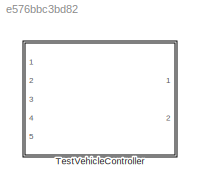
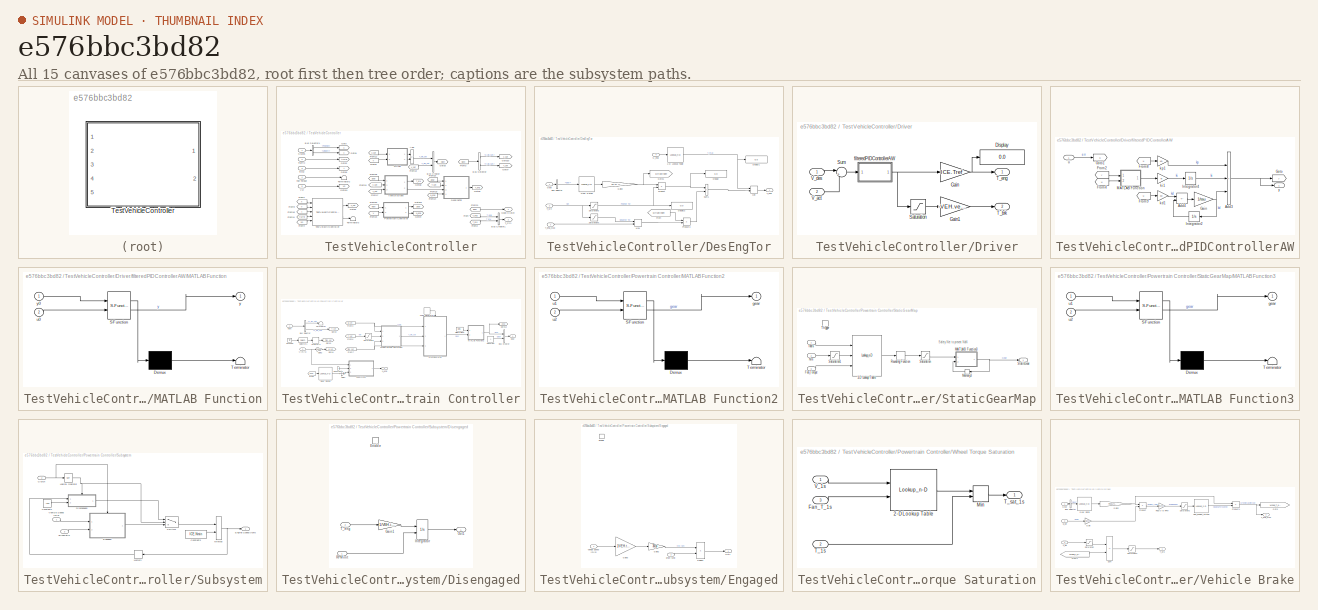
[diagram: thumbnail index - all 15 canvases of the model, root first then tree order]
MODEL slx_e576bbc3bd82
KIND library
CONFIG AbsTol = auto
CONFIG EnableMultiTasking = off
CONFIG FixedStep = auto
CONFIG MaxStep = auto
CONFIG MinStep = auto
CONFIG RelTol = 1e-3
CONFIG SampleTimeConstraint = Unconstrained
CONFIG Solver = VariableStepAuto
CONFIG SolverName = VariableStepAuto
CONFIG StartTime = 0.0
CONFIG StopTime = 10.0
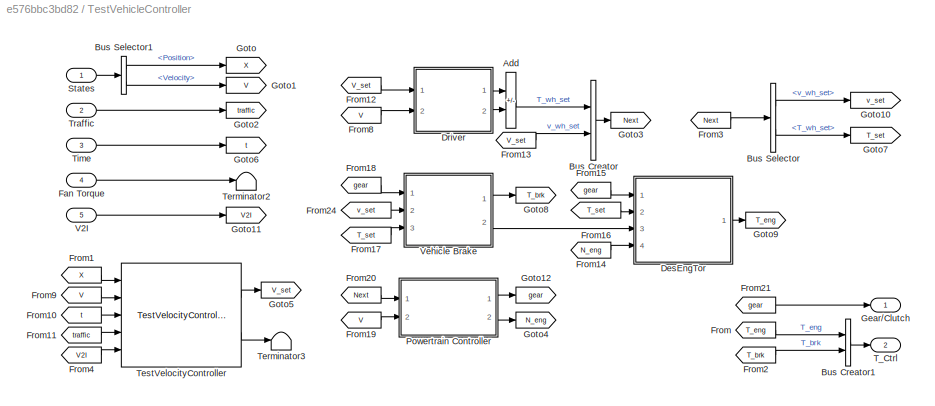
BLOCK [SubSystem] TestVehicleController
  Ports = [5, 2]
  RequestExecContextInheritance = off
  VariantControl = strcmpi(VEHICLECONTROLLER,'Test')
BLOCK [Sum] TestVehicleController/Add
  IconShape = rectangular
  Inputs = +-
  Ports = [2, 1]
BLOCK [BusCreator] TestVehicleController/Bus Creator
  DisplayOption = bar
  InheritFromInputs = on
  Inputs = 2
  Ports = [2, 1]
BLOCK [BusCreator] TestVehicleController/Bus Creator1
  DisplayOption = bar
  InheritFromInputs = on
  Inputs = 2
  Ports = [2, 1]
BLOCK [BusSelector] TestVehicleController/Bus Selector
  OutputSignals = v_wh_set,T_wh_set
  Ports = [1, 2]
BLOCK [BusSelector] TestVehicleController/Bus Selector1
  OutputSignals = Position,Velocity
  Ports = [1, 2]
BLOCK [SubSystem] TestVehicleController/DesEngTor
  Ports = [4, 1]
  RequestExecContextInheritance = off
BLOCK [Lookup_n-D] TestVehicleController/DesEngTor/1-D Lookup Table
  BreakpointsForDimension1 = MTC.espd
  InternalRulePriority = Speed
  NumberOfTableDimensions = 1
  Ports = [1, 1]
  RndMeth = Simplest
  Table = MTC.T_max
BLOCK [BusSelector] TestVehicleController/DesEngTor/Bus Selector
  OutputSignals = Gear
  Ports = [1, 1]
BLOCK [Display] TestVehicleController/DesEngTor/Display
  Decimation = 1
  Ports = [1]
BLOCK [Display] TestVehicleController/DesEngTor/Display1
  Decimation = 1
  Ports = [1]
BLOCK [Display] TestVehicleController/DesEngTor/Display2
  Decimation = 1
  Ports = [1]
BLOCK [From] TestVehicleController/DesEngTor/From
  GotoTag = DrivelineR
BLOCK [Gain] TestVehicleController/DesEngTor/Gain2
  Gain = TRAN.finalDrive
BLOCK [Inport] TestVehicleController/DesEngTor/Gear
BLOCK [Lookup_n-D] TestVehicleController/DesEngTor/Gear Ratios
  BreakpointsForDimension1 = [1:TRAN.numGears]
  ExtrapMethod = Clip
  InternalRulePriority = Speed
  NumberOfTableDimensions = 1
  Ports = [1, 1]
  RndMeth = Simplest
  Table = TRAN.gears
  UseLastTableValue = on
BLOCK [Goto] TestVehicleController/DesEngTor/Goto1
  GotoTag = DrivelineR
BLOCK [MinMax] TestVehicleController/DesEngTor/Max
  Function = max
  Inputs = 2
  Ports = [2, 1]
BLOCK [MinMax] TestVehicleController/DesEngTor/Min
  Inputs = 2
  Ports = [2, 1]
BLOCK [Inport] TestVehicleController/DesEngTor/N_eng
  Port = 4
BLOCK [Product] TestVehicleController/DesEngTor/Product
  Inputs = /*
  Ports = [2, 1]
BLOCK [Product] TestVehicleController/DesEngTor/Product3
  Inputs = /*
  Ports = [2, 1]
BLOCK [Saturate] TestVehicleController/DesEngTor/Saturation2
  LowerLimit = 0
  UpperLimit = inf
BLOCK [Saturate] TestVehicleController/DesEngTor/Saturation3
  LowerLimit = -inf
  UpperLimit = 0
BLOCK [Sum] TestVehicleController/DesEngTor/Sum1
  IconShape = rectangular
  Ports = [2, 1]
BLOCK [Outport] TestVehicleController/DesEngTor/T_eng
  VectorParamsAs1DForOutWhenUnconnected = off
BLOCK [Inport] TestVehicleController/DesEngTor/T_eng_Max
  Port = 3
BLOCK [Inport] TestVehicleController/DesEngTor/T_wh
  Port = 2
BLOCK [SubSystem] TestVehicleController/Driver
  Ports = [2, 2]
  RequestExecContextInheritance = off
BLOCK [Display] TestVehicleController/Driver/Display
  Decimation = 1
  Ports = [1]
BLOCK [Gain] TestVehicleController/Driver/Gain
  Gain = ICE.Tref
BLOCK [Gain] TestVehicleController/Driver/Gain1
  Gain = -VEH.vehicleMass*9.8*VEH.mu*VEH.tireRad
BLOCK [Saturate] TestVehicleController/Driver/Saturation
  LowerLimit = -1
  UpperLimit = 0
BLOCK [Sum] TestVehicleController/Driver/Sum
  Inputs = |+-
  Ports = [2, 1]
BLOCK [Outport] TestVehicleController/Driver/T_brk
  Port = 2
  VectorParamsAs1DForOutWhenUnconnected = off
BLOCK [Outport] TestVehicleController/Driver/T_eng
  VectorParamsAs1DForOutWhenUnconnected = off
BLOCK [Inport] TestVehicleController/Driver/V_act
  Port = 2
BLOCK [Inport] TestVehicleController/Driver/V_des
BLOCK [SubSystem] TestVehicleController/Driver/filteredPIDControllerAW
  Ports = [1, 1]
  RequestExecContextInheritance = off
BLOCK [Sum] TestVehicleController/Driver/filteredPIDControllerAW/Add3
  IconShape = rectangular
  Inputs = +++
  Ports = [3, 1]
BLOCK [Sum] TestVehicleController/Driver/filteredPIDControllerAW/Add4
  IconShape = rectangular
  Inputs = +-
  Ports = [2, 1]
BLOCK [From] TestVehicleController/Driver/filteredPIDControllerAW/From2
  GotoTag = y
BLOCK [From] TestVehicleController/Driver/filteredPIDControllerAW/From4
  GotoTag = u
BLOCK [From] TestVehicleController/Driver/filteredPIDControllerAW/From8
  GotoTag = u
BLOCK [From] TestVehicleController/Driver/filteredPIDControllerAW/From9
  GotoTag = u
BLOCK [Gain] TestVehicleController/Driver/filteredPIDControllerAW/Gain
  Gain = 1/tau
BLOCK [Goto] TestVehicleController/Driver/filteredPIDControllerAW/Goto
  GotoTag = y
BLOCK [Goto] TestVehicleController/Driver/filteredPIDControllerAW/Goto1
  GotoTag = u
BLOCK [Integrator] TestVehicleController/Driver/filteredPIDControllerAW/Integrator2
  Ports = [1, 1]
BLOCK [Integrator] TestVehicleController/Driver/filteredPIDControllerAW/Integrator4
  Ports = [1, 1]
BLOCK [SubSystem] TestVehicleController/Driver/filteredPIDControllerAW/MATLAB Function
  ErrorFcn = Stateflow.Translate.translate
  PermitHierarchicalResolution = ExplicitOnly
  Ports = [2, 1]
  RequestExecContextInheritance = off
  SFBlockType = MATLAB Function
  TreatAsAtomicUnit = on
BLOCK [Demux] TestVehicleController/Driver/filteredPIDControllerAW/MATLAB Function/ Demux 
  Outputs = 1
  Ports = [1, 1]
BLOCK [S-Function] TestVehicleController/Driver/filteredPIDControllerAW/MATLAB Function/ SFunction 
  EnableBusSupport = off
  FunctionName = sf_sfun
  Parameters = cMax,cMin
  PortCounts = [2 2]
  Ports = [2, 2]
  SFcnIsStateOwnerBlock = off
  SFunctionDeploymentMode = off
  Tag = Stateflow S-Function 1
BLOCK [Terminator] TestVehicleController/Driver/filteredPIDControllerAW/MATLAB Function/ Terminator 
BLOCK [Inport] TestVehicleController/Driver/filteredPIDControllerAW/MATLAB Function/u0
  Port = 2
BLOCK [Outport] TestVehicleController/Driver/filteredPIDControllerAW/MATLAB Function/y
BLOCK [Inport] TestVehicleController/Driver/filteredPIDControllerAW/MATLAB Function/y0
BLOCK [Gain] TestVehicleController/Driver/filteredPIDControllerAW/kd1
  Gain = kd
BLOCK [Gain] TestVehicleController/Driver/filteredPIDControllerAW/ki1
  Gain = ki
BLOCK [Gain] TestVehicleController/Driver/filteredPIDControllerAW/kp1
  Gain = kp
BLOCK [Inport] TestVehicleController/Driver/filteredPIDControllerAW/u
  PortDimensions = 1
BLOCK [Outport] TestVehicleController/Driver/filteredPIDControllerAW/y
  PortDimensions = 1
  VectorParamsAs1DForOutWhenUnconnected = off
BLOCK [Inport] TestVehicleController/Fan Torque
  Port = 4
BLOCK [From] TestVehicleController/From
  GotoTag = T_eng
BLOCK [From] TestVehicleController/From1
  GotoTag = X
BLOCK [From] TestVehicleController/From10
  GotoTag = t
BLOCK [From] TestVehicleController/From11
  GotoTag = traffic
BLOCK [From] TestVehicleController/From12
  GotoTag = V_set
BLOCK [From] TestVehicleController/From13
  GotoTag = V_set
BLOCK [From] TestVehicleController/From14
  GotoTag = N_eng
BLOCK [From] TestVehicleController/From15
  GotoTag = gear
BLOCK [From] TestVehicleController/From16
  GotoTag = T_set
BLOCK [From] TestVehicleController/From17
  GotoTag = T_set
BLOCK [From] TestVehicleController/From18
  GotoTag = gear
BLOCK [From] TestVehicleController/From19
  GotoTag = V
BLOCK [From] TestVehicleController/From2
  GotoTag = T_brk
BLOCK [From] TestVehicleController/From20
  GotoTag = Next
BLOCK [From] TestVehicleController/From21
  GotoTag = gear
BLOCK [From] TestVehicleController/From24
  GotoTag = v_set
BLOCK [From] TestVehicleController/From3
  GotoTag = Next
BLOCK [From] TestVehicleController/From4
  GotoTag = V2I
BLOCK [From] TestVehicleController/From8
  GotoTag = V
BLOCK [From] TestVehicleController/From9
  GotoTag = V
BLOCK [Outport] TestVehicleController/Gear//Clutch
  VectorParamsAs1DForOutWhenUnconnected = off
BLOCK [Goto] TestVehicleController/Goto
  GotoTag = X
BLOCK [Goto] TestVehicleController/Goto1
  GotoTag = V
BLOCK [Goto] TestVehicleController/Goto10
  GotoTag = v_set
BLOCK [Goto] TestVehicleController/Goto11
  GotoTag = V2I
BLOCK [Goto] TestVehicleController/Goto12
  GotoTag = gear
BLOCK [Goto] TestVehicleController/Goto2
  GotoTag = traffic
BLOCK [Goto] TestVehicleController/Goto3
  GotoTag = Next
BLOCK [Goto] TestVehicleController/Goto4
  GotoTag = N_eng
BLOCK [Goto] TestVehicleController/Goto5
  GotoTag = V_set
BLOCK [Goto] TestVehicleController/Goto6
  GotoTag = t
BLOCK [Goto] TestVehicleController/Goto7
  GotoTag = T_set
BLOCK [Goto] TestVehicleController/Goto8
  GotoTag = T_brk
BLOCK [Goto] TestVehicleController/Goto9
  GotoTag = T_eng
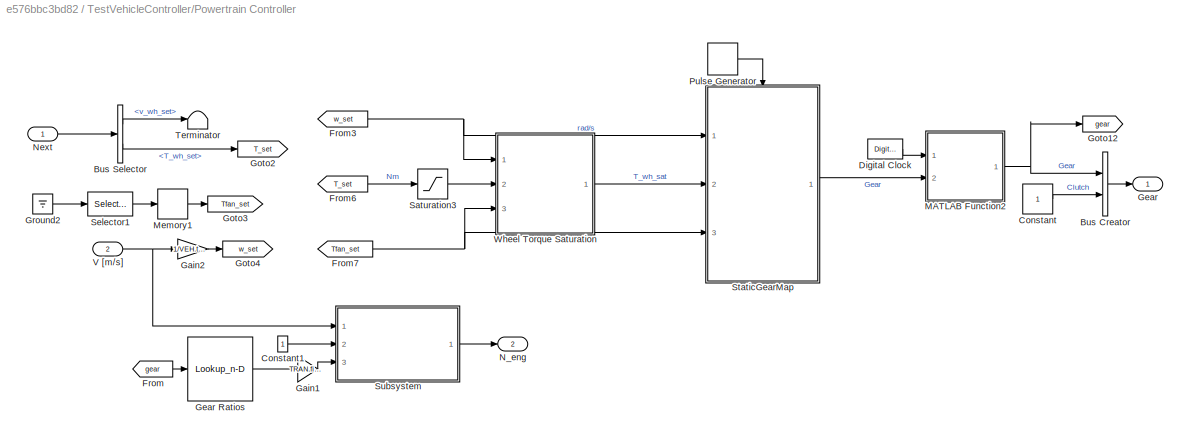
BLOCK [SubSystem] TestVehicleController/Powertrain Controller
  Ports = [2, 2]
  RequestExecContextInheritance = off
BLOCK [BusCreator] TestVehicleController/Powertrain Controller/Bus Creator
  DisplayOption = bar
  InheritFromInputs = on
  Inputs = Gear,Clutch
  Ports = [2, 1]
BLOCK [BusSelector] TestVehicleController/Powertrain Controller/Bus Selector
  OutputSignals = v_wh_set,T_wh_set
  Ports = [1, 2]
BLOCK [Constant] TestVehicleController/Powertrain Controller/Constant
BLOCK [Constant] TestVehicleController/Powertrain Controller/Constant1
BLOCK [DigitalClock] TestVehicleController/Powertrain Controller/Digital Clock
BLOCK [From] TestVehicleController/Powertrain Controller/From
  GotoTag = gear
BLOCK [From] TestVehicleController/Powertrain Controller/From3
  GotoTag = w_set
BLOCK [From] TestVehicleController/Powertrain Controller/From6
  GotoTag = T_set
BLOCK [From] TestVehicleController/Powertrain Controller/From7
  GotoTag = Tfan_set
BLOCK [Gain] TestVehicleController/Powertrain Controller/Gain1
  Gain = TRAN.finalDrive
BLOCK [Gain] TestVehicleController/Powertrain Controller/Gain2
  Gain = 1/VEH.tireRad
BLOCK [Outport] TestVehicleController/Powertrain Controller/Gear
  VectorParamsAs1DForOutWhenUnconnected = off
BLOCK [Lookup_n-D] TestVehicleController/Powertrain Controller/Gear Ratios
  BreakpointsForDimension1 = [1:TRAN.numGears]
  ExtrapMethod = Clip
  InternalRulePriority = Speed
  NumberOfTableDimensions = 1
  Ports = [1, 1]
  RndMeth = Simplest
  Table = TRAN.gears
  UseLastTableValue = on
BLOCK [Goto] TestVehicleController/Powertrain Controller/Goto12
  GotoTag = gear
BLOCK [Goto] TestVehicleController/Powertrain Controller/Goto2
  GotoTag = T_set
BLOCK [Goto] TestVehicleController/Powertrain Controller/Goto3
  GotoTag = Tfan_set
BLOCK [Goto] TestVehicleController/Powertrain Controller/Goto4
  GotoTag = w_set
BLOCK [Ground] TestVehicleController/Powertrain Controller/Ground2
BLOCK [SubSystem] TestVehicleController/Powertrain Controller/MATLAB Function2
  ErrorFcn = Stateflow.Translate.translate
  PermitHierarchicalResolution = ExplicitOnly
  Ports = [2, 1]
  RequestExecContextInheritance = off
  SFBlockType = MATLAB Function
  TreatAsAtomicUnit = on
BLOCK [Demux] TestVehicleController/Powertrain Controller/MATLAB Function2/ Demux 
  Outputs = 1
  Ports = [1, 1]
BLOCK [S-Function] TestVehicleController/Powertrain Controller/MATLAB Function2/ SFunction 
  EnableBusSupport = off
  FunctionName = sf_sfun
  PortCounts = [2 2]
  Ports = [2, 2]
  SFcnIsStateOwnerBlock = off
  SFunctionDeploymentMode = off
  Tag = Stateflow S-Function 2
BLOCK [Terminator] TestVehicleController/Powertrain Controller/MATLAB Function2/ Terminator 
BLOCK [Outport] TestVehicleController/Powertrain Controller/MATLAB Function2/gear
  VectorParamsAs1DForOutWhenUnconnected = off
BLOCK [Inport] TestVehicleController/Powertrain Controller/MATLAB Function2/u1
BLOCK [Inport] TestVehicleController/Powertrain Controller/MATLAB Function2/u2
  Port = 2
BLOCK [Memory] TestVehicleController/Powertrain Controller/Memory1
  InheritSampleTime = on
BLOCK [Outport] TestVehicleController/Powertrain Controller/N_eng
  Port = 2
  VectorParamsAs1DForOutWhenUnconnected = off
BLOCK [Inport] TestVehicleController/Powertrain Controller/Next
BLOCK [DiscretePulseGenerator] TestVehicleController/Powertrain Controller/Pulse Generator
  Period = 7
  Ports = [0, 1]
  PulseType = Time based
BLOCK [Saturate] TestVehicleController/Powertrain Controller/Saturation3
  LowerLimit = 0
  UpperLimit = inf
BLOCK [Selector] TestVehicleController/Powertrain Controller/Selector1
  IndexOptions = Index vector (dialog)
  Indices = [1]
  InputPortWidth = 1
  OutputSizes = 1
  Ports = [1, 1]
BLOCK [SubSystem] TestVehicleController/Powertrain Controller/StaticGearMap
  Ports = [3, 1, 0, 1]
  RequestExecContextInheritance = off
BLOCK [Lookup_n-D] TestVehicleController/Powertrain Controller/StaticGearMap/3-D Lookup Table
  BreakpointsForDimension1 = dem_wheel_speed
  BreakpointsForDimension2 = dem_wheel_torque
  BreakpointsForDimension3 = t_acc
  InternalRulePriority = Speed
  NumberOfTableDimensions = 3
  Ports = [3, 1]
  RndMeth = Simplest
  Table = best_gear
BLOCK [Inport] TestVehicleController/Powertrain Controller/StaticGearMap/Fan_Torque
  Port = 3
BLOCK [SubSystem] TestVehicleController/Powertrain Controller/StaticGearMap/MATLAB Function3
  ErrorFcn = Stateflow.Translate.translate
  PermitHierarchicalResolution = ExplicitOnly
  Ports = [2, 1]
  RequestExecContextInheritance = off
  SFBlockType = MATLAB Function
  TreatAsAtomicUnit = on
BLOCK [Demux] TestVehicleController/Powertrain Controller/StaticGearMap/MATLAB Function3/ Demux 
  Outputs = 1
  Ports = [1, 1]
BLOCK [S-Function] TestVehicleController/Powertrain Controller/StaticGearMap/MATLAB Function3/ SFunction 
  EnableBusSupport = off
  FunctionName = sf_sfun
  PortCounts = [2 2]
  Ports = [2, 2]
  SFcnIsStateOwnerBlock = off
  SFunctionDeploymentMode = off
  Tag = Stateflow S-Function 8
BLOCK [Terminator] TestVehicleController/Powertrain Controller/StaticGearMap/MATLAB Function3/ Terminator 
BLOCK [Outport] TestVehicleController/Powertrain Controller/StaticGearMap/MATLAB Function3/gear
  VectorParamsAs1DForOutWhenUnconnected = off
BLOCK [Inport] TestVehicleController/Powertrain Controller/StaticGearMap/MATLAB Function3/u1
BLOCK [Inport] TestVehicleController/Powertrain Controller/StaticGearMap/MATLAB Function3/u2
  Port = 2
BLOCK [Memory] TestVehicleController/Powertrain Controller/StaticGearMap/Memory3
  InheritSampleTime = on
  InitialCondition = 11
BLOCK [Inport] TestVehicleController/Powertrain Controller/StaticGearMap/Nm
  Port = 2
BLOCK [Rounding] TestVehicleController/Powertrain Controller/StaticGearMap/Rounding Function
  Operator = round
BLOCK [Saturate] TestVehicleController/Powertrain Controller/StaticGearMap/Saturation
  LowerLimit = 1
  UpperLimit = 12
BLOCK [Saturate] TestVehicleController/Powertrain Controller/StaticGearMap/Saturation1
  LowerLimit = 0
  UpperLimit = inf
BLOCK [Outport] TestVehicleController/Powertrain Controller/StaticGearMap/StaticGear
  VectorParamsAs1DForOutWhenUnconnected = off
BLOCK [TriggerPort] TestVehicleController/Powertrain Controller/StaticGearMap/Trigger
  PortDimensions = 1
  Ports = []
  StatesWhenEnabling = held
  VariantControl = Variant
BLOCK [Inport] TestVehicleController/Powertrain Controller/StaticGearMap/rad//s
BLOCK [SubSystem] TestVehicleController/Powertrain Controller/Subsystem
  Ports = [3, 1]
  RequestExecContextInheritance = off
BLOCK [Inport] TestVehicleController/Powertrain Controller/Subsystem/Clutch
  Port = 2
BLOCK [Constant] TestVehicleController/Powertrain Controller/Subsystem/Constant1
  Value = -300
BLOCK [Constant] TestVehicleController/Powertrain Controller/Subsystem/Constant3
  Value = ICE.Nmin
BLOCK [SubSystem] TestVehicleController/Powertrain Controller/Subsystem/Disengaged
  Ports = [2, 1, 1]
  RequestExecContextInheritance = off
  TreatAsAtomicUnit = on
BLOCK [EnablePort] TestVehicleController/Powertrain Controller/Subsystem/Disengaged/Enable
  Ports = []
  StatesWhenEnabling = reset
BLOCK [Gain] TestVehicleController/Powertrain Controller/Subsystem/Disengaged/Gain1
  Gain = 1/VEH.inertiaCrank
BLOCK [Integrator] TestVehicleController/Powertrain Controller/Subsystem/Disengaged/Integrator
  InitialConditionSource = external
  Ports = [2, 1]
BLOCK [Outport] TestVehicleController/Powertrain Controller/Subsystem/Disengaged/Out1
  InitialOutput = ICE.Nmin
  VectorParamsAs1DForOutWhenUnconnected = off
BLOCK [Inport] TestVehicleController/Powertrain Controller/Subsystem/Disengaged/RPM init
BLOCK [Inport] TestVehicleController/Powertrain Controller/Subsystem/Disengaged/T_eng
  Port = 2
BLOCK [SubSystem] TestVehicleController/Powertrain Controller/Subsystem/Engaged
  Ports = [2, 1, 1]
  RequestExecContextInheritance = off
  TreatAsAtomicUnit = on
BLOCK [Product] TestVehicleController/Powertrain Controller/Subsystem/Engaged/Divide1
  Inputs = **
  Ports = [2, 1]
BLOCK [EnablePort] TestVehicleController/Powertrain Controller/Subsystem/Engaged/Enable
  Ports = []
  StatesWhenEnabling = reset
BLOCK [Gain] TestVehicleController/Powertrain Controller/Subsystem/Engaged/Gain2
  Gain = 30/pi
BLOCK [Gain] TestVehicleController/Powertrain Controller/Subsystem/Engaged/Gain3
  Gain = 1/VEH.tireRad
BLOCK [Outport] TestVehicleController/Powertrain Controller/Subsystem/Engaged/Out1
  InitialOutput = ICE.Nmin
  VectorParamsAs1DForOutWhenUnconnected = off
BLOCK [Inport] TestVehicleController/Powertrain Controller/Subsystem/Engaged/Vehicle Speed [m//s]
BLOCK [Inport] TestVehicleController/Powertrain Controller/Subsystem/Engaged/drive ratio
  Port = 2
BLOCK [Outport] TestVehicleController/Powertrain Controller/Subsystem/Engine Speed [rpm]
  VectorParamsAs1DForOutWhenUnconnected = off
BLOCK [Logic] TestVehicleController/Powertrain Controller/Subsystem/Logical Operator
  AllPortsSameDT = off
  Operator = NOT
  OutDataTypeStr = boolean
  Ports = [1, 1]
BLOCK [Memory] TestVehicleController/Powertrain Controller/Subsystem/Memory
  InitialCondition = ICE.Nmin
BLOCK [MinMax] TestVehicleController/Powertrain Controller/Subsystem/MinMax
  Function = max
  Inputs = 2
  Ports = [2, 1]
BLOCK [Switch] TestVehicleController/Powertrain Controller/Subsystem/Switch1
  Criteria = u2 > Threshold
  InputSameDT = off
  SaturateOnIntegerOverflow = off
BLOCK [Inport] TestVehicleController/Powertrain Controller/Subsystem/Vehicle Speed [m//s]
BLOCK [Inport] TestVehicleController/Powertrain Controller/Subsystem/driveRatio
  Port = 3
BLOCK [Terminator] TestVehicleController/Powertrain Controller/Terminator
BLOCK [Inport] TestVehicleController/Powertrain Controller/V [m//s]
  Port = 2
BLOCK [SubSystem] TestVehicleController/Powertrain Controller/Wheel Torque Saturation
  Ports = [3, 1]
  RequestExecContextInheritance = off
BLOCK [Lookup_n-D] TestVehicleController/Powertrain Controller/Wheel Torque Saturation/2-D Lookup Table
  BreakpointsForDimension1 = dem_wheel_speed
  BreakpointsForDimension2 = tau_acc
  InternalRulePriority = Speed
  Ports = [2, 1]
  RndMeth = Simplest
  Table = WheelTorque_Max'
BLOCK [Inport] TestVehicleController/Powertrain Controller/Wheel Torque Saturation/Fan_T_1s
  Port = 3
BLOCK [MinMax] TestVehicleController/Powertrain Controller/Wheel Torque Saturation/Min
  Inputs = 2
  Ports = [2, 1]
BLOCK [Inport] TestVehicleController/Powertrain Controller/Wheel Torque Saturation/T_1s
  Port = 2
BLOCK [Outport] TestVehicleController/Powertrain Controller/Wheel Torque Saturation/T_sat_1s
  VectorParamsAs1DForOutWhenUnconnected = off
BLOCK [Inport] TestVehicleController/Powertrain Controller/Wheel Torque Saturation/V_1s
BLOCK [Inport] TestVehicleController/States
BLOCK [Outport] TestVehicleController/T_Ctrl
  Port = 2
  VectorParamsAs1DForOutWhenUnconnected = off
BLOCK [Terminator] TestVehicleController/Terminator2
BLOCK [Terminator] TestVehicleController/Terminator3
BLOCK [Reference] TestVehicleController/TestVelocityController  REF=TestVelocityController_UL/TestVelocityController
  Ports = [5, 2]
  SourceBlock = TestVelocityController_UL/TestVelocityController
BLOCK [Inport] TestVehicleController/Time
  Port = 3
BLOCK [Inport] TestVehicleController/Traffic
  Port = 2
BLOCK [Inport] TestVehicleController/V2I
  Port = 5
BLOCK [SubSystem] TestVehicleController/Vehicle Brake
  Ports = [3, 2]
  RequestExecContextInheritance = off
BLOCK [BusSelector] TestVehicleController/Vehicle Brake/Bus Selector
  OutputSignals = Gear
  Ports = [1, 1]
BLOCK [From] TestVehicleController/Vehicle Brake/From1
  GotoTag = Wheel_T_eng_Max
BLOCK [Gain] TestVehicleController/Vehicle Brake/Gain
  Gain = 1/.5003
BLOCK [Gain] TestVehicleController/Vehicle Brake/Gain2
  Gain = TRAN.finalDrive
BLOCK [Inport] TestVehicleController/Vehicle Brake/Gear
BLOCK [Lookup_n-D] TestVehicleController/Vehicle Brake/Gear Ratio
  BreakpointsForDimension1 = [1 2 3 4 5 6 7 8 9 10 11 12]
  BreakpointsForDimension2 = [1:3]
  InternalRulePriority = Speed
  NumberOfTableDimensions = 1
  Ports = [1, 1]
  RndMeth = Simplest
  Table = [11.73 9.21 7.09 5.57 4.34 3.41 2.69 2.12 1.63 1.28 1 0.7850]
BLOCK [Goto] TestVehicleController/Vehicle Brake/Goto
  GotoTag = Wheel_T_eng_Max
BLOCK [Lookup_n-D] TestVehicleController/Vehicle Brake/Neg_Engine_Torque
  BreakpointsForDimension1 = Neg_RPM
  BreakpointsForDimension2 = [1:3]
  InternalRulePriority = Speed
  NumberOfTableDimensions = 1
  Ports = [1, 1]
  RndMeth = Simplest
  Table = Neg_T_eng_Nm
BLOCK [Product] TestVehicleController/Vehicle Brake/Product
  Ports = [2, 1]
BLOCK [Product] TestVehicleController/Vehicle Brake/Product1
  Ports = [2, 1]
BLOCK [Gain] TestVehicleController/Vehicle Brake/Rad//s to RPM
  Gain = 9.5493
BLOCK [Saturate] TestVehicleController/Vehicle Brake/Saturation
  LowerLimit = -inf
  UpperLimit = 0
BLOCK [Saturate] TestVehicleController/Vehicle Brake/Saturation1
  LowerLimit = 0
  UpperLimit = inf
BLOCK [Saturate] TestVehicleController/Vehicle Brake/Saturation2
  LowerLimit = 0
  UpperLimit = 2100
BLOCK [Sum] TestVehicleController/Vehicle Brake/Sum
  IconShape = rectangular
  Inputs = -+
  Ports = [2, 1]
BLOCK [Outport] TestVehicleController/Vehicle Brake/T_brk
  VectorParamsAs1DForOutWhenUnconnected = off
BLOCK [Outport] TestVehicleController/Vehicle Brake/T_eng_Max
  Port = 2
  VectorParamsAs1DForOutWhenUnconnected = off
BLOCK [Inport] TestVehicleController/Vehicle Brake/T_wh
  Port = 3
BLOCK [Inport] TestVehicleController/Vehicle Brake/w_wh
  Port = 2
ANNOTATION TestVehicleController/Powertrain Controller/StaticGearMap: Safety Net to prevent NaN
LINE TestVehicleController/Add:1 -> TestVehicleController/Bus Creator:1
LINE TestVehicleController/Bus Creator1:1 -> TestVehicleController/T_Ctrl:1
LINE TestVehicleController/Bus Creator:1 -> TestVehicleController/Goto3:1
LINE TestVehicleController/Bus Selector1:1 -> TestVehicleController/Goto:1
LINE TestVehicleController/Bus Selector1:2 -> TestVehicleController/Goto1:1
LINE TestVehicleController/Bus Selector:1 -> TestVehicleController/Goto10:1
LINE TestVehicleController/Bus Selector:2 -> TestVehicleController/Goto7:1
NET TestVehicleController/DesEngTor/1-D Lookup Table:1 -> TestVehicleController/DesEngTor/Display1:1, TestVehicleController/DesEngTor/Min:1
LINE TestVehicleController/DesEngTor/Bus Selector:1 -> TestVehicleController/DesEngTor/Gear Ratios:1
LINE TestVehicleController/DesEngTor/From:1 -> TestVehicleController/DesEngTor/Product3:1
NET TestVehicleController/DesEngTor/Gain2:1 -> TestVehicleController/DesEngTor/Goto1:1, TestVehicleController/DesEngTor/Product:1
LINE TestVehicleController/DesEngTor/Gear Ratios:1 -> TestVehicleController/DesEngTor/Gain2:1
LINE TestVehicleController/DesEngTor/Gear:1 -> TestVehicleController/DesEngTor/Bus Selector:1
LINE TestVehicleController/DesEngTor/Max:1 -> TestVehicleController/DesEngTor/Product3:2
LINE TestVehicleController/DesEngTor/Min:1 -> TestVehicleController/DesEngTor/T_eng:1
LINE TestVehicleController/DesEngTor/N_eng:1 -> TestVehicleController/DesEngTor/1-D Lookup Table:1
LINE TestVehicleController/DesEngTor/Product3:1 -> TestVehicleController/DesEngTor/Sum1:2
NET TestVehicleController/DesEngTor/Product:1 -> TestVehicleController/DesEngTor/Display:1, TestVehicleController/DesEngTor/Sum1:1
NET TestVehicleController/DesEngTor/Saturation2:1 -> TestVehicleController/DesEngTor/Display2:1, TestVehicleController/DesEngTor/Product:2
LINE TestVehicleController/DesEngTor/Saturation3:1 -> TestVehicleController/DesEngTor/Max:1
LINE TestVehicleController/DesEngTor/Sum1:1 -> TestVehicleController/DesEngTor/Min:2
LINE TestVehicleController/DesEngTor/T_eng_Max:1 -> TestVehicleController/DesEngTor/Max:2
NET TestVehicleController/DesEngTor/T_wh:1 -> TestVehicleController/DesEngTor/Saturation2:1, TestVehicleController/DesEngTor/Saturation3:1
LINE TestVehicleController/DesEngTor:1 -> TestVehicleController/Goto9:1
LINE TestVehicleController/Driver/Gain1:1 -> TestVehicleController/Driver/T_brk:1
NET TestVehicleController/Driver/Gain:1 -> TestVehicleController/Driver/Display:1, TestVehicleController/Driver/T_eng:1
LINE TestVehicleController/Driver/Saturation:1 -> TestVehicleController/Driver/Gain1:1
LINE TestVehicleController/Driver/Sum:1 -> TestVehicleController/Driver/filteredPIDControllerAW:1
LINE TestVehicleController/Driver/V_act:1 -> TestVehicleController/Driver/Sum:2
LINE TestVehicleController/Driver/V_des:1 -> TestVehicleController/Driver/Sum:1
NET TestVehicleController/Driver/filteredPIDControllerAW:1 -> TestVehicleController/Driver/Gain:1, TestVehicleController/Driver/Saturation:1
LINE TestVehicleController/Driver:1 -> TestVehicleController/Add:1
LINE TestVehicleController/Driver:2 -> TestVehicleController/Add:2
LINE TestVehicleController/Fan Torque:1 -> TestVehicleController/Terminator2:1
LINE TestVehicleController/From10:1 -> TestVehicleController/TestVelocityController:3
LINE TestVehicleController/From11:1 -> TestVehicleController/TestVelocityController:4
LINE TestVehicleController/From12:1 -> TestVehicleController/Driver:1
LINE TestVehicleController/From13:1 -> TestVehicleController/Bus Creator:2
LINE TestVehicleController/From14:1 -> TestVehicleController/DesEngTor:4
LINE TestVehicleController/From15:1 -> TestVehicleController/DesEngTor:1
LINE TestVehicleController/From16:1 -> TestVehicleController/DesEngTor:2
LINE TestVehicleController/From17:1 -> TestVehicleController/Vehicle Brake:3
LINE TestVehicleController/From18:1 -> TestVehicleController/Vehicle Brake:1
LINE TestVehicleController/From19:1 -> TestVehicleController/Powertrain Controller:2
LINE TestVehicleController/From1:1 -> TestVehicleController/TestVelocityController:1
LINE TestVehicleController/From20:1 -> TestVehicleController/Powertrain Controller:1
LINE TestVehicleController/From21:1 -> TestVehicleController/Gear//Clutch:1
LINE TestVehicleController/From24:1 -> TestVehicleController/Vehicle Brake:2
LINE TestVehicleController/From2:1 -> TestVehicleController/Bus Creator1:2
LINE TestVehicleController/From3:1 -> TestVehicleController/Bus Selector:1
LINE TestVehicleController/From4:1 -> TestVehicleController/TestVelocityController:5
LINE TestVehicleController/From8:1 -> TestVehicleController/Driver:2
LINE TestVehicleController/From9:1 -> TestVehicleController/TestVelocityController:2
LINE TestVehicleController/From:1 -> TestVehicleController/Bus Creator1:1
LINE TestVehicleController/Powertrain Controller/Bus Creator:1 -> TestVehicleController/Powertrain Controller/Gear:1
LINE TestVehicleController/Powertrain Controller/Bus Selector:1 -> TestVehicleController/Powertrain Controller/Terminator:1
LINE TestVehicleController/Powertrain Controller/Bus Selector:2 -> TestVehicleController/Powertrain Controller/Goto2:1
LINE TestVehicleController/Powertrain Controller/Constant1:1 -> TestVehicleController/Powertrain Controller/Subsystem:2
LINE TestVehicleController/Powertrain Controller/Constant:1 -> TestVehicleController/Powertrain Controller/Bus Creator:2
LINE TestVehicleController/Powertrain Controller/Digital Clock:1 -> TestVehicleController/Powertrain Controller/MATLAB Function2:1
NET TestVehicleController/Powertrain Controller/From3:1 -> TestVehicleController/Powertrain Controller/StaticGearMap:1, TestVehicleController/Powertrain Controller/Wheel Torque Saturation:1
LINE TestVehicleController/Powertrain Controller/From6:1 -> TestVehicleController/Powertrain Controller/Saturation3:1
NET TestVehicleController/Powertrain Controller/From7:1 -> TestVehicleController/Powertrain Controller/StaticGearMap:3, TestVehicleController/Powertrain Controller/Wheel Torque Saturation:3
LINE TestVehicleController/Powertrain Controller/From:1 -> TestVehicleController/Powertrain Controller/Gear Ratios:1
LINE TestVehicleController/Powertrain Controller/Gain1:1 -> TestVehicleController/Powertrain Controller/Subsystem:3
LINE TestVehicleController/Powertrain Controller/Gain2:1 -> TestVehicleController/Powertrain Controller/Goto4:1
LINE TestVehicleController/Powertrain Controller/Gear Ratios:1 -> TestVehicleController/Powertrain Controller/Gain1:1
LINE TestVehicleController/Powertrain Controller/Ground2:1 -> TestVehicleController/Powertrain Controller/Selector1:1
NET TestVehicleController/Powertrain Controller/MATLAB Function2:1 -> TestVehicleController/Powertrain Controller/Bus Creator:1, TestVehicleController/Powertrain Controller/Goto12:1
LINE TestVehicleController/Powertrain Controller/Memory1:1 -> TestVehicleController/Powertrain Controller/Goto3:1
LINE TestVehicleController/Powertrain Controller/Next:1 -> TestVehicleController/Powertrain Controller/Bus Selector:1
LINE TestVehicleController/Powertrain Controller/Pulse Generator:1 -> TestVehicleController/Powertrain Controller/StaticGearMap:trigger
LINE TestVehicleController/Powertrain Controller/Saturation3:1 -> TestVehicleController/Powertrain Controller/Wheel Torque Saturation:2
LINE TestVehicleController/Powertrain Controller/Selector1:1 -> TestVehicleController/Powertrain Controller/Memory1:1
LINE TestVehicleController/Powertrain Controller/StaticGearMap/3-D Lookup Table:1 -> TestVehicleController/Powertrain Controller/StaticGearMap/Rounding Function:1
LINE TestVehicleController/Powertrain Controller/StaticGearMap/Fan_Torque:1 -> TestVehicleController/Powertrain Controller/StaticGearMap/3-D Lookup Table:3
NET TestVehicleController/Powertrain Controller/StaticGearMap/MATLAB Function3:1 -> TestVehicleController/Powertrain Controller/StaticGearMap/Memory3:1, TestVehicleController/Powertrain Controller/StaticGearMap/StaticGear:1
LINE TestVehicleController/Powertrain Controller/StaticGearMap/Memory3:1 -> TestVehicleController/Powertrain Controller/StaticGearMap/MATLAB Function3:2
LINE TestVehicleController/Powertrain Controller/StaticGearMap/Nm:1 -> TestVehicleController/Powertrain Controller/StaticGearMap/Saturation1:1
LINE TestVehicleController/Powertrain Controller/StaticGearMap/Rounding Function:1 -> TestVehicleController/Powertrain Controller/StaticGearMap/Saturation:1
LINE TestVehicleController/Powertrain Controller/StaticGearMap/Saturation1:1 -> TestVehicleController/Powertrain Controller/StaticGearMap/3-D Lookup Table:2
LINE TestVehicleController/Powertrain Controller/StaticGearMap/Saturation:1 -> TestVehicleController/Powertrain Controller/StaticGearMap/MATLAB Function3:1
LINE TestVehicleController/Powertrain Controller/StaticGearMap/rad//s:1 -> TestVehicleController/Powertrain Controller/StaticGearMap/3-D Lookup Table:1
LINE TestVehicleController/Powertrain Controller/StaticGearMap:1 -> TestVehicleController/Powertrain Controller/MATLAB Function2:2
NET TestVehicleController/Powertrain Controller/Subsystem/Clutch:1 -> TestVehicleController/Powertrain Controller/Subsystem/Engaged:enable, TestVehicleController/Powertrain Controller/Subsystem/Logical Operator:1
LINE TestVehicleController/Powertrain Controller/Subsystem/Constant1:1 -> TestVehicleController/Powertrain Controller/Subsystem/Disengaged:2
LINE TestVehicleController/Powertrain Controller/Subsystem/Constant3:1 -> TestVehicleController/Powertrain Controller/Subsystem/MinMax:2
LINE TestVehicleController/Powertrain Controller/Subsystem/Disengaged/Gain1:1 -> TestVehicleController/Powertrain Controller/Subsystem/Disengaged/Integrator:1
LINE TestVehicleController/Powertrain Controller/Subsystem/Disengaged/Integrator:1 -> TestVehicleController/Powertrain Controller/Subsystem/Disengaged/Out1:1
LINE TestVehicleController/Powertrain Controller/Subsystem/Disengaged/RPM init:1 -> TestVehicleController/Powertrain Controller/Subsystem/Disengaged/Integrator:2
LINE TestVehicleController/Powertrain Controller/Subsystem/Disengaged/T_eng:1 -> TestVehicleController/Powertrain Controller/Subsystem/Disengaged/Gain1:1
LINE TestVehicleController/Powertrain Controller/Subsystem/Disengaged:1 -> TestVehicleController/Powertrain Controller/Subsystem/Switch1:1
LINE TestVehicleController/Powertrain Controller/Subsystem/Engaged/Divide1:1 -> TestVehicleController/Powertrain Controller/Subsystem/Engaged/Out1:1
LINE TestVehicleController/Powertrain Controller/Subsystem/Engaged/Gain2:1 -> TestVehicleController/Powertrain Controller/Subsystem/Engaged/Divide1:1
LINE TestVehicleController/Powertrain Controller/Subsystem/Engaged/Gain3:1 -> TestVehicleController/Powertrain Controller/Subsystem/Engaged/Gain2:1
LINE TestVehicleController/Powertrain Controller/Subsystem/Engaged/Vehicle Speed [m//s]:1 -> TestVehicleController/Powertrain Controller/Subsystem/Engaged/Gain3:1
LINE TestVehicleController/Powertrain Controller/Subsystem/Engaged/drive ratio:1 -> TestVehicleController/Powertrain Controller/Subsystem/Engaged/Divide1:2
LINE TestVehicleController/Powertrain Controller/Subsystem/Engaged:1 -> TestVehicleController/Powertrain Controller/Subsystem/Switch1:3
NET TestVehicleController/Powertrain Controller/Subsystem/Logical Operator:1 -> TestVehicleController/Powertrain Controller/Subsystem/Disengaged:enable, TestVehicleController/Powertrain Controller/Subsystem/Switch1:2
LINE TestVehicleController/Powertrain Controller/Subsystem/Memory:1 -> TestVehicleController/Powertrain Controller/Subsystem/Disengaged:1
NET TestVehicleController/Powertrain Controller/Subsystem/MinMax:1 -> TestVehicleController/Powertrain Controller/Subsystem/Engine Speed [rpm]:1, TestVehicleController/Powertrain Controller/Subsystem/Memory:1
LINE TestVehicleController/Powertrain Controller/Subsystem/Switch1:1 -> TestVehicleController/Powertrain Controller/Subsystem/MinMax:1
LINE TestVehicleController/Powertrain Controller/Subsystem/Vehicle Speed [m//s]:1 -> TestVehicleController/Powertrain Controller/Subsystem/Engaged:1
LINE TestVehicleController/Powertrain Controller/Subsystem/driveRatio:1 -> TestVehicleController/Powertrain Controller/Subsystem/Engaged:2
LINE TestVehicleController/Powertrain Controller/Subsystem:1 -> TestVehicleController/Powertrain Controller/N_eng:1
NET TestVehicleController/Powertrain Controller/V [m//s]:1 -> TestVehicleController/Powertrain Controller/Gain2:1, TestVehicleController/Powertrain Controller/Subsystem:1
LINE TestVehicleController/Powertrain Controller/Wheel Torque Saturation/2-D Lookup Table:1 -> TestVehicleController/Powertrain Controller/Wheel Torque Saturation/Min:1
LINE TestVehicleController/Powertrain Controller/Wheel Torque Saturation/Fan_T_1s:1 -> TestVehicleController/Powertrain Controller/Wheel Torque Saturation/2-D Lookup Table:2
LINE TestVehicleController/Powertrain Controller/Wheel Torque Saturation/Min:1 -> TestVehicleController/Powertrain Controller/Wheel Torque Saturation/T_sat_1s:1
LINE TestVehicleController/Powertrain Controller/Wheel Torque Saturation/T_1s:1 -> TestVehicleController/Powertrain Controller/Wheel Torque Saturation/Min:2
LINE TestVehicleController/Powertrain Controller/Wheel Torque Saturation/V_1s:1 -> TestVehicleController/Powertrain Controller/Wheel Torque Saturation/2-D Lookup Table:1
LINE TestVehicleController/Powertrain Controller/Wheel Torque Saturation:1 -> TestVehicleController/Powertrain Controller/StaticGearMap:2
LINE TestVehicleController/Powertrain Controller:1 -> TestVehicleController/Goto12:1
LINE TestVehicleController/Powertrain Controller:2 -> TestVehicleController/Goto4:1
LINE TestVehicleController/States:1 -> TestVehicleController/Bus Selector1:1
LINE TestVehicleController/TestVelocityController:1 -> TestVehicleController/Goto5:1
LINE TestVehicleController/TestVelocityController:2 -> TestVehicleController/Terminator3:1
LINE TestVehicleController/Time:1 -> TestVehicleController/Goto6:1
LINE TestVehicleController/Traffic:1 -> TestVehicleController/Goto2:1
LINE TestVehicleController/V2I:1 -> TestVehicleController/Goto11:1
LINE TestVehicleController/Vehicle Brake/Bus Selector:1 -> TestVehicleController/Vehicle Brake/Gear Ratio:1
LINE TestVehicleController/Vehicle Brake/From1:1 -> TestVehicleController/Vehicle Brake/Sum:2
NET TestVehicleController/Vehicle Brake/Gain2:1 -> TestVehicleController/Vehicle Brake/Product1:1, TestVehicleController/Vehicle Brake/Product:1
LINE TestVehicleController/Vehicle Brake/Gain:1 -> TestVehicleController/Vehicle Brake/Product:2
LINE TestVehicleController/Vehicle Brake/Gear Ratio:1 -> TestVehicleController/Vehicle Brake/Gain2:1
LINE TestVehicleController/Vehicle Brake/Gear:1 -> TestVehicleController/Vehicle Brake/Bus Selector:1
LINE TestVehicleController/Vehicle Brake/Neg_Engine_Torque:1 -> TestVehicleController/Vehicle Brake/Product1:2
NET TestVehicleController/Vehicle Brake/Product1:1 -> TestVehicleController/Vehicle Brake/Goto:1, TestVehicleController/Vehicle Brake/T_eng_Max:1
LINE TestVehicleController/Vehicle Brake/Product:1 -> TestVehicleController/Vehicle Brake/Rad//s to RPM:1
LINE TestVehicleController/Vehicle Brake/Rad//s to RPM:1 -> TestVehicleController/Vehicle Brake/Saturation2:1
LINE TestVehicleController/Vehicle Brake/Saturation1:1 -> TestVehicleController/Vehicle Brake/T_brk:1
LINE TestVehicleController/Vehicle Brake/Saturation2:1 -> TestVehicleController/Vehicle Brake/Neg_Engine_Torque:1
LINE TestVehicleController/Vehicle Brake/Saturation:1 -> TestVehicleController/Vehicle Brake/Sum:1
LINE TestVehicleController/Vehicle Brake/Sum:1 -> TestVehicleController/Vehicle Brake/Saturation1:1
LINE TestVehicleController/Vehicle Brake/T_wh:1 -> TestVehicleController/Vehicle Brake/Saturation:1
LINE TestVehicleController/Vehicle Brake/w_wh:1 -> TestVehicleController/Vehicle Brake/Gain:1
LINE TestVehicleController/Vehicle Brake:1 -> TestVehicleController/Goto8:1
LINE TestVehicleController/Vehicle Brake:2 -> TestVehicleController/DesEngTor:3
note: NET lines group one-source signal fan-out (src -> all destinations, sorted); 1:1 wires keep LINE
CHART TestVehicleController/Driver/filteredPIDControllerAW/MATLAB Function states=1 transitions=1
  STATE_LABEL 'eML_blk_kernel()'
  STATE_LABEL 'SCRIPT:\nfunction y = fcn(y0, u0, cMax, cMin)\n\nif y0 > cMax\n    y1 = cMax; \nelseif y0 < cMin\n    y1 = cMin; \nelse\n    y1 = y0; \nend\n\nsat = y0-y1; \naw = exp(-1e5*sat^2); \ny = aw*u0; '
CHART TestVehicleController/Powertrain Controller/MATLAB Function2 states=1 transitions=1
  STATE_LABEL 'eML_blk_kernel()'
  STATE_LABEL 'SCRIPT:\nfunction gear = fcn(u1, u2)\nif u1 <= 7 \n    gear=11;\nelse\n    gear=u2;\nend\n\n'
CHART TestVehicleController/Powertrain Controller/StaticGearMap/MATLAB Function3 states=1 transitions=1
  STATE_LABEL 'eML_blk_kernel()'
  STATE_LABEL 'SCRIPT:\nfunction gear = fcn(u1, u2)\nif isnan(u1)\n    gear=u2;\nelse\n    gear=u1;\nend\n\n'
CHART  states=0 transitions=0
CHART  states=0 transitions=0
CHART  states=0 transitions=0
